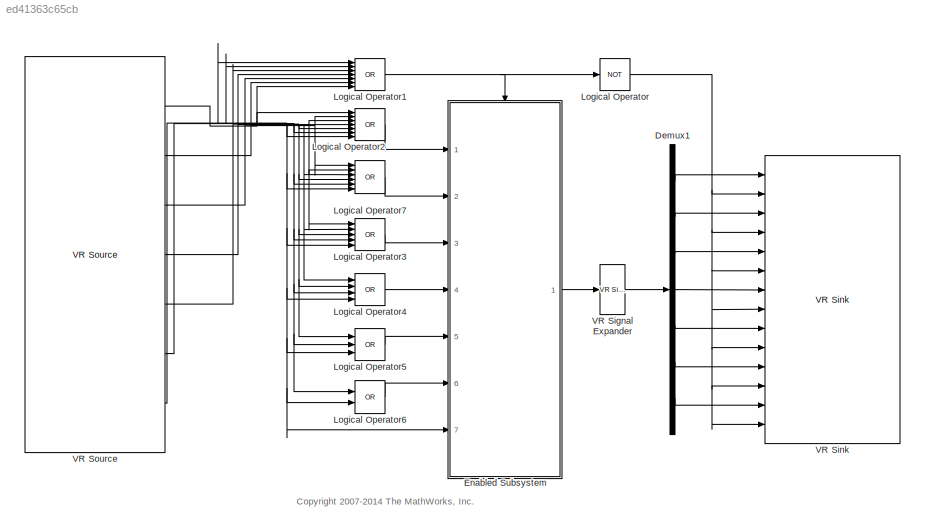
MODEL slx_ed41363c65cb
KIND model
CONFIG AbsTol = auto
CONFIG EnableMultiTasking = off
CONFIG FixedStep = auto
CONFIG MaxStep = auto
CONFIG MinStep = auto
CONFIG RelTol = 1e-3
CONFIG SampleTimeConstraint = Unconstrained
CONFIG Solver = ode45
CONFIG SolverName = ode45
CONFIG StartTime = 0.0
CONFIG StopTime = inf
BLOCK [Demux] Demux1
  DisplayOption = bar
  Outputs = 7
  Ports = [1, 7]
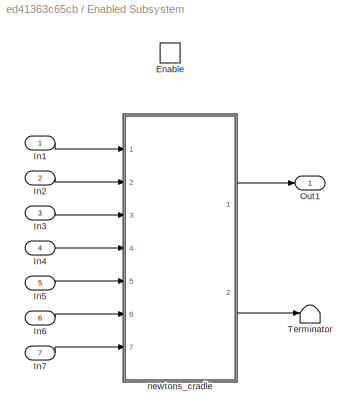
BLOCK [SubSystem] Enabled Subsystem
  Ports = [7, 1, 1]
  RequestExecContextInheritance = off
  TreatAsAtomicUnit = on
  Variant = off
BLOCK [EnablePort] Enabled Subsystem/Enable
  Ports = []
BLOCK [Inport] Enabled Subsystem/In1
  IconDisplay = Port number
BLOCK [Inport] Enabled Subsystem/In2
  IconDisplay = Port number
  Port = 2
BLOCK [Inport] Enabled Subsystem/In3
  IconDisplay = Port number
  Port = 3
BLOCK [Inport] Enabled Subsystem/In4
  IconDisplay = Port number
  Port = 4
BLOCK [Inport] Enabled Subsystem/In5
  IconDisplay = Port number
  Port = 5
BLOCK [Inport] Enabled Subsystem/In6
  IconDisplay = Port number
  Port = 6
BLOCK [Inport] Enabled Subsystem/In7
  IconDisplay = Port number
  Port = 7
BLOCK [Outport] Enabled Subsystem/Out1
  IconDisplay = Port number
BLOCK [Terminator] Enabled Subsystem/Terminator
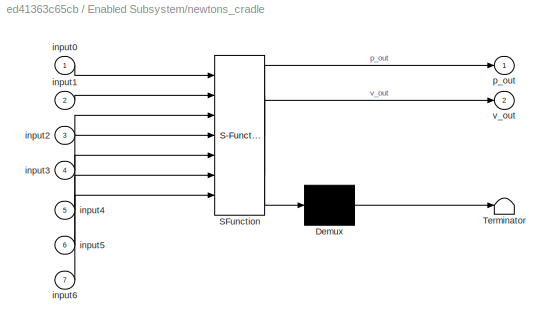
BLOCK [SubSystem] Enabled Subsystem/newtons_cradle
  ErrorFcn = Stateflow.Translate.translate
  PermitHierarchicalResolution = ExplicitOnly
  Ports = [7, 2]
  RequestExecContextInheritance = off
  SFBlockType = Chart
  TreatAsAtomicUnit = on
  Variant = off
BLOCK [Demux] Enabled Subsystem/newtons_cradle/ Demux 
  Outputs = 1
  Ports = [1, 1]
BLOCK [S-Function] Enabled Subsystem/newtons_cradle/ SFunction 
  EnableBusSupport = off
  FunctionName = sf_sfun
  PortCounts = [7 3]
  Ports = [7, 3]
  SFcnIsStateOwnerBlock = off
  SFunctionDeploymentMode = off
  Tag = Stateflow S-Function sf_newtons_cradle_vr 2
BLOCK [Terminator] Enabled Subsystem/newtons_cradle/ Terminator 
BLOCK [Inport] Enabled Subsystem/newtons_cradle/input0
  IconDisplay = Port number
BLOCK [Inport] Enabled Subsystem/newtons_cradle/input1
  IconDisplay = Port number
  Port = 2
BLOCK [Inport] Enabled Subsystem/newtons_cradle/input2
  IconDisplay = Port number
  Port = 3
BLOCK [Inport] Enabled Subsystem/newtons_cradle/input3
  IconDisplay = Port number
  Port = 4
BLOCK [Inport] Enabled Subsystem/newtons_cradle/input4
  IconDisplay = Port number
  Port = 5
BLOCK [Inport] Enabled Subsystem/newtons_cradle/input5
  IconDisplay = Port number
  Port = 6
BLOCK [Inport] Enabled Subsystem/newtons_cradle/input6
  IconDisplay = Port number
  Port = 7
BLOCK [Outport] Enabled Subsystem/newtons_cradle/p_out
  IconDisplay = Port number
BLOCK [Outport] Enabled Subsystem/newtons_cradle/v_out
  IconDisplay = Port number
  Port = 2
BLOCK [Logic] Logical Operator
  AllPortsSameDT = off
  Operator = NOT
  OutDataTypeStr = boolean
  Ports = [1, 1]
BLOCK [Logic] Logical Operator1
  AllPortsSameDT = off
  Inputs = 7
  Operator = OR
  OutDataTypeStr = boolean
  Ports = [7, 1]
BLOCK [Logic] Logical Operator2
  AllPortsSameDT = off
  Inputs = 7
  Operator = OR
  OutDataTypeStr = boolean
  Ports = [7, 1]
BLOCK [Logic] Logical Operator3
  AllPortsSameDT = off
  Inputs = 5
  Operator = OR
  OutDataTypeStr = boolean
  Ports = [5, 1]
BLOCK [Logic] Logical Operator4
  AllPortsSameDT = off
  Inputs = 4
  Operator = OR
  OutDataTypeStr = boolean
  Ports = [4, 1]
BLOCK [Logic] Logical Operator5
  AllPortsSameDT = off
  Inputs = 3
  Operator = OR
  OutDataTypeStr = boolean
  Ports = [3, 1]
BLOCK [Logic] Logical Operator6
  AllPortsSameDT = off
  Operator = OR
  OutDataTypeStr = boolean
  Ports = [2, 1]
BLOCK [Logic] Logical Operator7
  AllPortsSameDT = off
  Inputs = 6
  Operator = OR
  OutDataTypeStr = boolean
  Ports = [6, 1]
BLOCK [Reference] VR Signal Expander  REF=vrlib/VR Signal Expander
  Ports = [1, 1]
  SourceBlock = vrlib/VR Signal Expander
  SourceProductBaseCode = VR
  SourceProductName = Simulink 3D Animation
  SourceType = VR Signal Expander
BLOCK [Reference] VR Sink  REF=vrlib/VR Sink
  InstantiateOnLoad = on
  Ports = [14]
  SourceBlock = vrlib/VR Sink
  SourceProductBaseCode = VR
  SourceProductName = Simulink 3D Animation
  SourceType = Virtual Reality Sink
BLOCK [Reference] VR Source  REF=vrlib/VR Source
  InstantiateOnLoad = on
  Ports = [0, 7]
  SourceBlock = vrlib/VR Source
  SourceProductBaseCode = VR
  SourceProductName = Simulink 3D Animation
  SourceType = Virtual Reality Source
ANNOTATION (root): <copyright redacted>
LINE Demux1:1 -> VR Sink:1
LINE Demux1:2 -> VR Sink:3
LINE Demux1:3 -> VR Sink:5
LINE Demux1:4 -> VR Sink:7
LINE Demux1:5 -> VR Sink:9
LINE Demux1:6 -> VR Sink:11
LINE Demux1:7 -> VR Sink:13
LINE Enabled Subsystem/In1:1 -> Enabled Subsystem/newtons_cradle:1
LINE Enabled Subsystem/In2:1 -> Enabled Subsystem/newtons_cradle:2
LINE Enabled Subsystem/In3:1 -> Enabled Subsystem/newtons_cradle:3
LINE Enabled Subsystem/In4:1 -> Enabled Subsystem/newtons_cradle:4
LINE Enabled Subsystem/In5:1 -> Enabled Subsystem/newtons_cradle:5
LINE Enabled Subsystem/In6:1 -> Enabled Subsystem/newtons_cradle:6
LINE Enabled Subsystem/In7:1 -> Enabled Subsystem/newtons_cradle:7
LINE Enabled Subsystem/newtons_cradle:1 -> Enabled Subsystem/Out1:1
LINE Enabled Subsystem/newtons_cradle:2 -> Enabled Subsystem/Terminator:1
LINE Enabled Subsystem:1 -> VR Signal Expander:1
NET Logical Operator1:1 -> Enabled Subsystem:enable, Logical Operator:1
LINE Logical Operator2:1 -> Enabled Subsystem:1
LINE Logical Operator3:1 -> Enabled Subsystem:3
LINE Logical Operator4:1 -> Enabled Subsystem:4
LINE Logical Operator5:1 -> Enabled Subsystem:5
LINE Logical Operator6:1 -> Enabled Subsystem:6
LINE Logical Operator7:1 -> Enabled Subsystem:2
NET Logical Operator:1 -> VR Sink:10, VR Sink:12, VR Sink:14, VR Sink:2, VR Sink:4, VR Sink:6, VR Sink:8
LINE VR Signal Expander:1 -> Demux1:1
NET VR Source:1 -> Logical Operator1:7, Logical Operator2:1
NET VR Source:2 -> Logical Operator1:6, Logical Operator2:2, Logical Operator7:1
NET VR Source:3 -> Logical Operator1:5, Logical Operator2:3, Logical Operator3:1, Logical Operator7:2
NET VR Source:4 -> Logical Operator1:4, Logical Operator2:4, Logical Operator3:2, Logical Operator4:1, Logical Operator7:3
NET VR Source:5 -> Logical Operator1:3, Logical Operator2:5, Logical Operator3:3, Logical Operator4:2, Logical Operator5:1, Logical Operator7:4
NET VR Source:6 -> Logical Operator1:2, Logical Operator2:6, Logical Operator3:4, Logical Operator4:3, Logical Operator5:2, Logical Operator6:1, Logical Operator7:5
NET VR Source:7 -> Enabled Subsystem:7, Logical Operator1:1, Logical Operator2:7, Logical Operator3:5, Logical Operator4:4, Logical Operator5:3, Logical Operator6:2, Logical Operator7:6
note: NET lines group one-source signal fan-out (src -> all destinations, sorted); 1:1 wires keep LINE
CHART Enabled Subsystem/newtons_cradle states=3 transitions=13
  STATE_LABEL 'FreeDynamics\ndu:\n  p_out = p;\n  v_out = v;\n  p_dot = v;\n  v_dot = -g/l*sin(p);'
  STATE_LABEL 'resetPositionsAndVelocities'
  STATE_LABEL '{i=0;}'
  STATE_LABEL '[i < k-1]'
  STATE_LABEL '{i++;}'
  STATE_LABEL '[p[i] < p[i+1]]\n{\n// swap positions\ntmp = p[i];\np[i] = p[i+1];\np[i+1] = tmp;\n// swap velocities\ntmp = v[i];\nv[i] = v[i+1];\nv[i+1] = tmp;\n}'
  STATE_LABEL 'collision = isCollisionPossible'
  STATE_LABEL '{i=0;}'
  STATE_LABEL '[i < k-1]'
  STATE_LABEL '{i++;}'
  STATE_LABEL '{\ncollision = 0;\n}'
  STATE_LABEL '[p[i] < p[i+1]]\n{\ncollision = 1;\n}'
